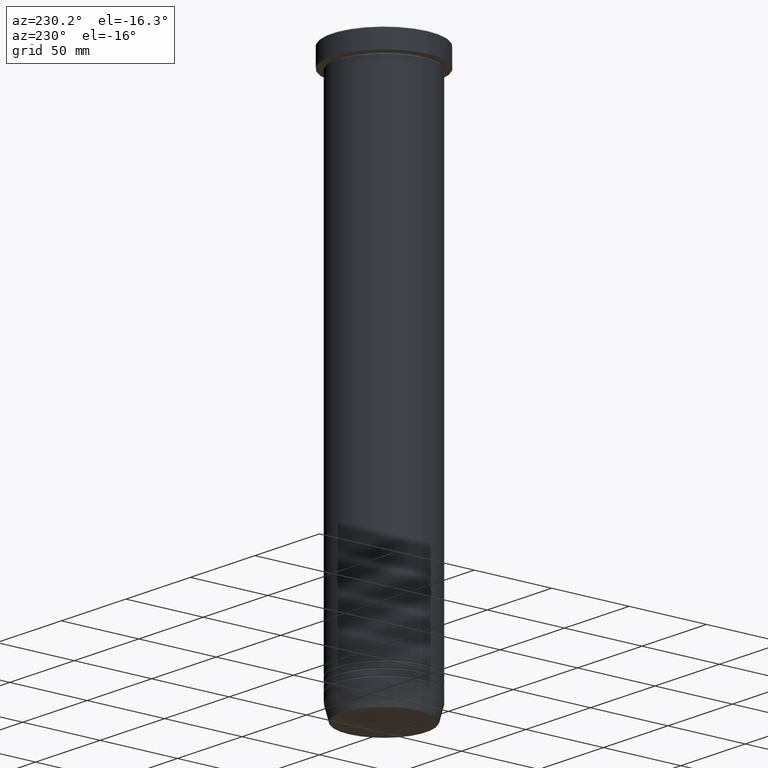
[diagram: clean part render]
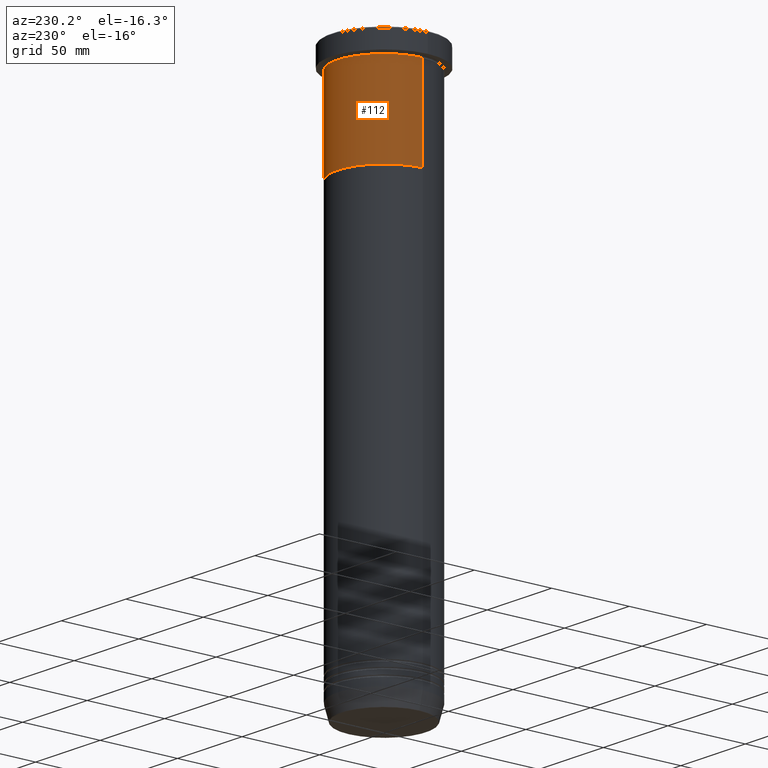
[diagram: same view with one face highlighted and labeled with its STEP entity id]
A machine part, auxiliary view. The second image highlights one B-rep face of the part: STEP entity #112.
In plain terms, the highlighted cylindrical surface (partial cylindrical patch) has radius 30 mm, axis along (-0, -0, 1).
Its self-contained STEP definition (entity closure, byte-faithful):
#14 = DIRECTION ( 'NONE',  ( -0.000000000000000000, -0.000000000000000000, 1.000000000000000000 ) ) ;
#23 = DIRECTION ( 'NONE',  ( -0.000000000000000000, -0.000000000000000000, 1.000000000000000000 ) ) ;
#38 = EDGE_LOOP ( 'NONE', ( #247, #983, #493, #85 ) ) ;
#63 = VERTEX_POINT ( 'NONE', #756 ) ;
#84 = AXIS2_PLACEMENT_3D ( 'NONE', #102, #14, #937 ) ;
#85 = ORIENTED_EDGE ( 'NONE', *, *, #510, .F. ) ;
#96 = DIRECTION ( 'NONE',  ( 1.000000000000000000, 0.000000000000000000, 0.000000000000000000 ) ) ;
#102 = CARTESIAN_POINT ( 'NONE',  ( 0.000000000000000000, 0.000000000000000000, -70.00000000000000000 ) ) ;
#112 = ADVANCED_FACE ( 'NONE', ( #604 ), #751, .T. ) ;
#123 = CARTESIAN_POINT ( 'NONE',  ( 0.000000000000000000, 0.000000000000000000, 0.000000000000000000 ) ) ;
#238 = CIRCLE ( 'NONE', #84, 30.00000000000000000 ) ;
#247 = ORIENTED_EDGE ( 'NONE', *, *, #696, .T. ) ;
#272 = DIRECTION ( 'NONE',  ( -0.000000000000000000, -0.000000000000000000, 1.000000000000000000 ) ) ;
#306 = VERTEX_POINT ( 'NONE', #637 ) ;
#312 = EDGE_CURVE ( 'NONE', #422, #63, #479, .T. ) ;
#422 = VERTEX_POINT ( 'NONE', #701 ) ;
#479 = LINE ( 'NONE', #1061, #898 ) ;
#493 = ORIENTED_EDGE ( 'NONE', *, *, #1031, .F. ) ;
#510 = EDGE_CURVE ( 'NONE', #806, #306, #967, .T. ) ;
#560 = DIRECTION ( 'NONE',  ( -0.000000000000000000, -0.000000000000000000, 1.000000000000000000 ) ) ;
#604 = FACE_OUTER_BOUND ( 'NONE', #38, .T. ) ;
#637 = CARTESIAN_POINT ( 'NONE',  ( 30.00000000000000000, 0.000000000000000000, -12.99999999999999822 ) ) ;
#655 = AXIS2_PLACEMENT_3D ( 'NONE', #123, #23, #1011 ) ;
#658 = CIRCLE ( 'NONE', #798, 30.00000000000000000 ) ;
#696 = EDGE_CURVE ( 'NONE', #806, #422, #238, .T. ) ;
#701 = CARTESIAN_POINT ( 'NONE',  ( -30.00000000000000000, 3.673940397442059178E-15, -70.00000000000000000 ) ) ;
#713 = DIRECTION ( 'NONE',  ( -0.000000000000000000, -0.000000000000000000, 1.000000000000000000 ) ) ;
#751 = CYLINDRICAL_SURFACE ( 'NONE', #655, 30.00000000000000000 ) ;
#756 = CARTESIAN_POINT ( 'NONE',  ( -30.00000000000000000, 3.673940397442059178E-15, -12.99999999999999822 ) ) ;
#798 = AXIS2_PLACEMENT_3D ( 'NONE', #1050, #272, #96 ) ;
#806 = VERTEX_POINT ( 'NONE', #864 ) ;
#823 = CARTESIAN_POINT ( 'NONE',  ( 30.00000000000000000, 0.000000000000000000, 0.000000000000000000 ) ) ;
#864 = CARTESIAN_POINT ( 'NONE',  ( 30.00000000000000000, 0.000000000000000000, -70.00000000000000000 ) ) ;
#898 = VECTOR ( 'NONE', #560, 1000.000000000000000 ) ;
#937 = DIRECTION ( 'NONE',  ( 1.000000000000000000, 0.000000000000000000, 0.000000000000000000 ) ) ;
#967 = LINE ( 'NONE', #823, #1023 ) ;
#983 = ORIENTED_EDGE ( 'NONE', *, *, #312, .T. ) ;
#1011 = DIRECTION ( 'NONE',  ( 1.000000000000000000, 0.000000000000000000, 0.000000000000000000 ) ) ;
#1023 = VECTOR ( 'NONE', #713, 1000.000000000000000 ) ;
#1031 = EDGE_CURVE ( 'NONE', #306, #63, #658, .T. ) ;
#1050 = CARTESIAN_POINT ( 'NONE',  ( 0.000000000000000000, 0.000000000000000000, -12.99999999999999822 ) ) ;
#1061 = CARTESIAN_POINT ( 'NONE',  ( -30.00000000000000000, 3.673940397442059178E-15, 0.000000000000000000 ) ) ;